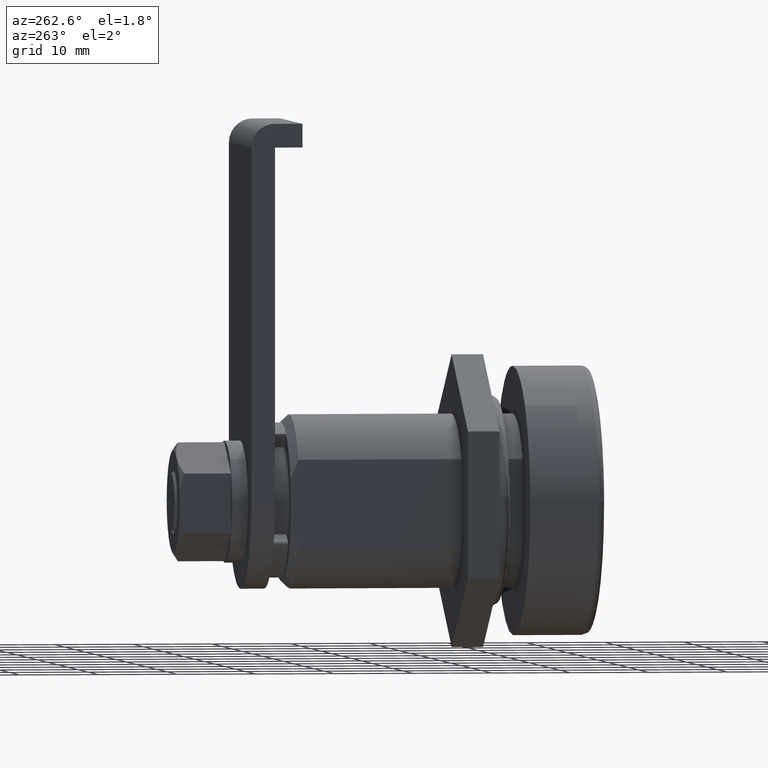
[diagram: clean part render]
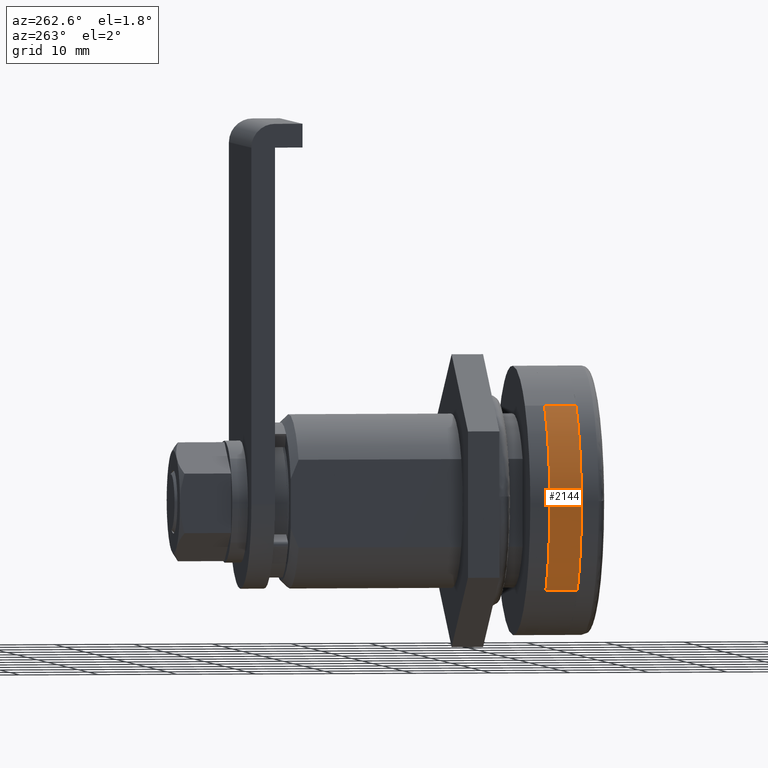
[diagram: same view with one face highlighted and labeled with its STEP entity id]
A machine part, auxiliary view. The second image highlights one B-rep face of the part: STEP entity #2144.
In plain terms, the highlighted face is a freeform B-spline surface patch.
Its self-contained STEP definition (entity closure, byte-faithful):
#1942=CARTESIAN_POINT('',(7.000000000013499,-12.980446293567820,10.977615053182211));
#1943=VERTEX_POINT('',#1942);
#1993=CARTESIAN_POINT('',(6.999999999996985,-11.702027383891251,-12.331363940751681));
#1994=VERTEX_POINT('',#1993);
#2006=CARTESIAN_POINT('',(3.000000000000110,-11.702027384218029,-12.331363940441580));
#2007=VERTEX_POINT('',#2006);
#2008=CARTESIAN_POINT('',(6.999999999996985,-11.702027383891251,-12.331363940751681));
#2009=CARTESIAN_POINT('',(3.000000000000110,-11.702027384218029,-12.331363940441580));
#2010=QUASI_UNIFORM_CURVE('',1,(#2008,#2009),.UNSPECIFIED.,.F.,.U.);
#2011=EDGE_CURVE('',#1994,#2007,#2010,.T.);
#2060=CARTESIAN_POINT('',(3.000000000000110,-12.980446294130200,10.977615052517219));
#2061=VERTEX_POINT('',#2060);
#2073=CARTESIAN_POINT('',(7.000000000013499,-12.980446293567820,10.977615053182211));
#2074=CARTESIAN_POINT('',(3.000000000000110,-12.980446294130200,10.977615052517219));
#2075=QUASI_UNIFORM_CURVE('',1,(#2073,#2074),.UNSPECIFIED.,.F.,.U.);
#2076=EDGE_CURVE('',#1943,#2061,#2075,.T.);
#2081=CARTESIAN_POINT('',(7.100000000000112,-11.702027786793820,-12.331364307208890));
#2082=CARTESIAN_POINT('',(7.100000000000112,-23.347194088976174,-1.280514112935677));
#2083=CARTESIAN_POINT('',(7.100000000000112,-12.980445929987905,10.977614652494436));
#2084=CARTESIAN_POINT('',(2.897500000000110,-11.702027786793820,-12.331364307208890));
#2085=CARTESIAN_POINT('',(2.897500000000110,-23.347194088976174,-1.280514112935677));
#2086=CARTESIAN_POINT('',(2.897500000000111,-12.980445929987905,10.977614652494436));
#2094=(BOUNDED_SURFACE()B_SPLINE_SURFACE(2,1,((#2081,#2084),(#2082,#2085),(#2083,#2086)),.UNSPECIFIED.,.F.,.F.,.U.)B_SPLINE_SURFACE_WITH_KNOTS((3,3),(2,2),(0.0,27.032440498049439),(0.0,4.202500000000002),.UNSPECIFIED.)GEOMETRIC_REPRESENTATION_ITEM()RATIONAL_B_SPLINE_SURFACE(((1.0,1.0),(0.718822509939086,0.718822509939086),(0.977505800795127,0.977505800795127)))REPRESENTATION_ITEM('')SURFACE());
#2095=CARTESIAN_POINT('',(7.000000000000110,-16.999999999999861,0.000002175615522));
#2096=VERTEX_POINT('',#2095);
#2097=CARTESIAN_POINT('',(7.000000000000110,-16.999999999999861,0.000002175615522));
#2098=CARTESIAN_POINT('',(7.000000000001567,-17.000170770661061,1.180978312954726));
#2099=CARTESIAN_POINT('',(7.000000000004202,-16.772391563046511,3.356343451357602));
#2100=CARTESIAN_POINT('',(7.000000000007760,-15.880115005218149,6.280636809068382));
#2101=CARTESIAN_POINT('',(7.000000000010834,-14.632934908087281,8.793415335601793));
#2102=CARTESIAN_POINT('',(7.000000000012610,-13.582547685648370,10.265764038599050));
#2103=CARTESIAN_POINT('',(7.000000000013499,-12.980446293567820,10.977615053182211));
#2104=B_SPLINE_CURVE_WITH_KNOTS('',3,(#2097,#2098,#2099,#2100,#2101,#2102,#2103),.UNSPECIFIED.,.F.,.U.,(4,1,1,1,4),(0.000000014364572,3.542900421515798,6.526370958469610,9.136945932153672,11.933967873718530),.UNSPECIFIED.);
#2105=EDGE_CURVE('',#2096,#1943,#2104,.T.);
#2106=ORIENTED_EDGE('',*,*,#2105,.T.);
#2107=ORIENTED_EDGE('',*,*,#2076,.T.);
#2108=CARTESIAN_POINT('',(3.000000000000110,-16.999999999999861,0.000002175615522));
#2109=VERTEX_POINT('',#2108);
#2110=CARTESIAN_POINT('',(3.000000000000110,-16.999999999999861,0.000002175615522));
#2111=CARTESIAN_POINT('',(3.000000000000108,-17.000429437040211,1.429634921382103));
#2112=CARTESIAN_POINT('',(3.000000000000108,-16.708093541726889,3.729170481757024));
#2113=CARTESIAN_POINT('',(3.000000000000115,-15.761172596973820,6.501891911712751));
#2114=CARTESIAN_POINT('',(3.000000000000101,-14.626536146598220,8.788035296186742));
#2115=CARTESIAN_POINT('',(3.000000000000114,-13.662880468752540,10.170881784962130));
#2116=CARTESIAN_POINT('',(3.000000000000110,-12.980446294130200,10.977615052517219));
#2117=B_SPLINE_CURVE_WITH_KNOTS('',3,(#2110,#2111,#2112,#2113,#2114,#2115,#2116),.UNSPECIFIED.,.F.,.U.,(4,1,1,1,4),(0.000000014363673,4.288776257003984,6.899306481692734,8.764005884948055,11.933967872847621),.UNSPECIFIED.);
#2118=EDGE_CURVE('',#2109,#2061,#2117,.T.);
#2119=ORIENTED_EDGE('',*,*,#2118,.F.);
#2120=CARTESIAN_POINT('',(3.000000000000110,-11.702027384218029,-12.331363940441580));
#2121=CARTESIAN_POINT('',(3.000000000000104,-12.666552120364081,-11.416472152782431));
#2122=CARTESIAN_POINT('',(3.000000000000116,-14.101266081513369,-9.692416315328876));
#2123=CARTESIAN_POINT('',(3.000000000000125,-15.718819426246810,-6.715494104788429));
#2124=CARTESIAN_POINT('',(3.000000000000064,-16.743336547817851,-3.592866728086071));
#2125=CARTESIAN_POINT('',(3.000000000000135,-17.000195449817699,-1.221605299973284));
#2126=CARTESIAN_POINT('',(3.000000000000110,-16.999999999999861,0.000002175615522));
#2127=B_SPLINE_CURVE_WITH_KNOTS('',3,(#2120,#2121,#2122,#2123,#2124,#2125,#2126),.UNSPECIFIED.,.F.,.U.,(4,1,1,1,4),(0.000000025656011,3.988157699448850,6.682858441160181,10.132063261596141,13.796852841908450),.UNSPECIFIED.);
#2128=EDGE_CURVE('',#2007,#2109,#2127,.T.);
#2129=ORIENTED_EDGE('',*,*,#2128,.F.);
#2130=ORIENTED_EDGE('',*,*,#2011,.F.);
#2131=CARTESIAN_POINT('',(6.999999999996985,-11.702027383891251,-12.331363940751681));
#2132=CARTESIAN_POINT('',(6.999999999997181,-12.536155497691530,-11.540056774334630));
#2133=CARTESIAN_POINT('',(6.999999999997495,-13.595412499198639,-10.307578141361880));
#2134=CARTESIAN_POINT('',(6.999999999998022,-14.909736656440140,-8.245563746954803));
#2135=CARTESIAN_POINT('',(6.999999999998541,-15.888017589570200,-6.237664021659874));
#2136=CARTESIAN_POINT('',(6.999999999999212,-16.766594052472239,-3.377275654808877));
#2137=CARTESIAN_POINT('',(6.999999999999856,-17.000213104225789,-1.221609012234481));
#2138=CARTESIAN_POINT('',(7.000000000000110,-16.999999999999861,0.000002175615522));
#2139=B_SPLINE_CURVE_WITH_KNOTS('',3,(#2131,#2132,#2133,#2134,#2135,#2136,#2137,#2138),.UNSPECIFIED.,.F.,.U.,(4,1,1,1,1,4),(0.000000025655813,3.449213325350776,4.850463374557780,7.329565640692784,10.132063261926939,13.796852842358939),.UNSPECIFIED.);
#2140=EDGE_CURVE('',#1994,#2096,#2139,.T.);
#2141=ORIENTED_EDGE('',*,*,#2140,.T.);
#2142=EDGE_LOOP('',(#2106,#2107,#2119,#2129,#2130,#2141));
#2143=FACE_OUTER_BOUND('',#2142,.T.);
#2144=ADVANCED_FACE('',(#2143),#2094,.T.);